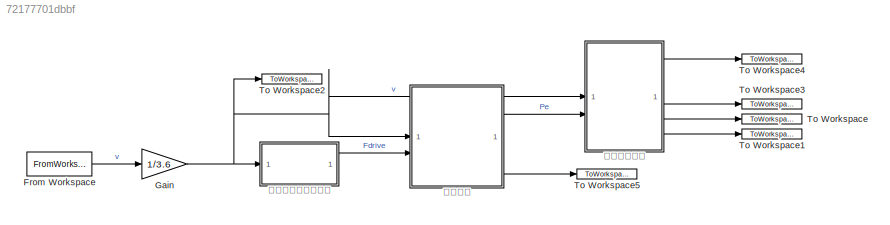
MODEL slx_72177701dbbf
KIND model
CONFIG AbsTol = auto
CONFIG EnableMultiTasking = off
CONFIG FixedStep = 0.01
CONFIG InitFcn = if type == 1\n    name = NEDC;\nelseif type == 2\n    name = CAFE;\nelseif type == 3\n    name = CNBUS;\nelseif type == 4\n    name = EUDC;\nelseif type == 5\n    name = FTP_75;\nelseif type == 6\n    name = HWFET;\nelseif type == 7\n    name = JC10;\nelseif type == 8\n    name = JC10_15;\nelseif type == 9\n    name = JC15;\nelseif type == 10\n    name = UDC;\nend\ntlen = size(name,1);\nif simtimeflag\n    simtime=tlen;...<+268ch>
CONFIG MaxStep = auto
CONFIG MinStep = auto
CONFIG RelTol = 1e-3
CONFIG SampleTimeConstraint = Unconstrained
CONFIG SolverName = FixedStepAuto
CONFIG StartTime = 0.0
CONFIG StopTime = simtime
BLOCK [FromWorkspace] From Workspace
  VariableName = name
BLOCK [Gain] Gain
  Gain = 1/3.6
BLOCK [ToWorkspace] To Workspace
  FixptAsFi = on
  MaxDataPoints = inf
  SampleTime = -1
  SaveFormat = Timeseries
  VariableName = xons
BLOCK [ToWorkspace] To Workspace1
  FixptAsFi = on
  MaxDataPoints = inf
  SampleTime = -1
  SaveFormat = Timeseries
  VariableName = distance
BLOCK [ToWorkspace] To Workspace2
  FixptAsFi = on
  MaxDataPoints = inf
  SampleTime = -1
  SaveFormat = Timeseries
  VariableName = v
BLOCK [ToWorkspace] To Workspace3
  FixptAsFi = on
  MaxDataPoints = inf
  SampleTime = -1
  SaveFormat = Timeseries
  VariableName = SOC
BLOCK [ToWorkspace] To Workspace4
  FixptAsFi = on
  MaxDataPoints = inf
  SampleTime = -1
  SaveFormat = Timeseries
  VariableName = Pbat
BLOCK [ToWorkspace] To Workspace5
  FixptAsFi = on
  MaxDataPoints = inf
  SampleTime = -1
  SaveFormat = Timeseries
  VariableName = Torque
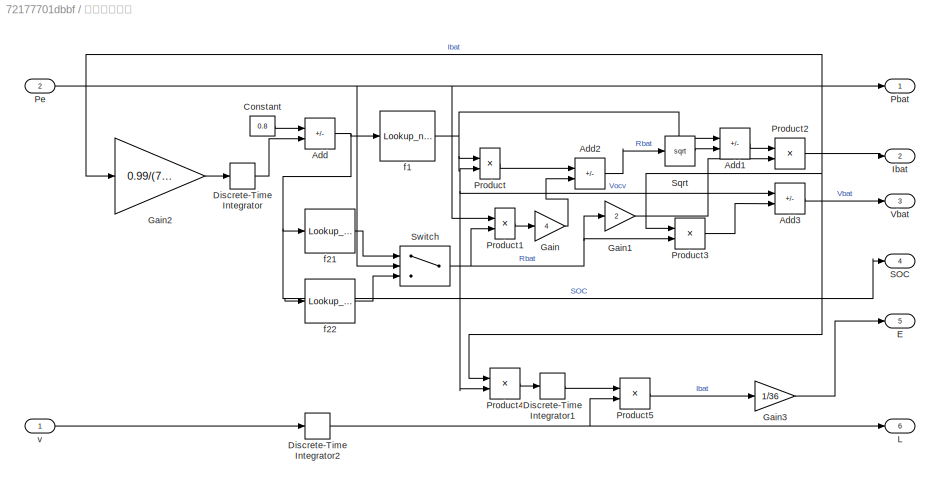
BLOCK [SubSystem] 动力电池模型
BLOCK [Sum] 动力电池模型/Add
  IconShape = rectangular
  Inputs = +-
BLOCK [Sum] 动力电池模型/Add1
  IconShape = rectangular
  Inputs = +-
BLOCK [Sum] 动力电池模型/Add2
  IconShape = rectangular
  Inputs = +-
BLOCK [Sum] 动力电池模型/Add3
  IconShape = rectangular
  Inputs = +-
BLOCK [Constant] 动力电池模型/Constant
  Value = 0.8
BLOCK [DiscreteIntegrator] 动力电池模型/Discrete-Time Integrator
  ICPrevOutput = DiscIntNeverNeededParam
  ICPrevScaledInput = DiscIntNeverNeededParam
  InitialConditionSetting = Auto
  SampleTime = -1
BLOCK [DiscreteIntegrator] 动力电池模型/Discrete-Time Integrator1
  ICPrevOutput = DiscIntNeverNeededParam
  ICPrevScaledInput = DiscIntNeverNeededParam
  InitialConditionSetting = Auto
  SampleTime = -1
BLOCK [DiscreteIntegrator] 动力电池模型/Discrete-Time Integrator2
  ICPrevOutput = DiscIntNeverNeededParam
  ICPrevScaledInput = DiscIntNeverNeededParam
  InitialConditionSetting = Auto
  SampleTime = -1
BLOCK [Outport] 动力电池模型/E
  Port = 5
BLOCK [Gain] 动力电池模型/Gain
  Gain = 4
BLOCK [Gain] 动力电池模型/Gain1
  Gain = 2
BLOCK [Gain] 动力电池模型/Gain2
  Gain = 0.99/(74*3600)
BLOCK [Gain] 动力电池模型/Gain3
  Gain = 1/36
BLOCK [Outport] 动力电池模型/Ibat
  Port = 2
BLOCK [Outport] 动力电池模型/L
  Port = 6
BLOCK [Outport] 动力电池模型/Pbat
BLOCK [Inport] 动力电池模型/Pe
  Port = 2
BLOCK [Product] 动力电池模型/Product
BLOCK [Product] 动力电池模型/Product1
BLOCK [Product] 动力电池模型/Product2
  Inputs = */
BLOCK [Product] 动力电池模型/Product3
BLOCK [Product] 动力电池模型/Product4
BLOCK [Product] 动力电池模型/Product5
  Inputs = */
BLOCK [Outport] 动力电池模型/SOC
  Port = 4
BLOCK [Sqrt] 动力电池模型/Sqrt
BLOCK [Switch] 动力电池模型/Switch
  InputSameDT = off
  SaturateOnIntegerOverflow = off
BLOCK [Outport] 动力电池模型/Vbat
  Port = 3
BLOCK [Lookup_n-D] 动力电池模型/f1
  BreakpointsForDimension1 = Vocv_cha_SOC(:,1)
  InputPortMap = u0
  InternalRulePriority = Speed
  NumberOfTableDimensions = 1
  RndMeth = Simplest
  Table = Vocv_cha_SOC(:,2)
BLOCK [Lookup_n-D] 动力电池模型/f21
  BreakpointsForDimension1 = R_dch_SOC(:,1)
  InputPortMap = u0
  InternalRulePriority = Speed
  NumberOfTableDimensions = 1
  RndMeth = Simplest
  Table = R_dch_SOC(:,2)
BLOCK [Lookup_n-D] 动力电池模型/f22
  BreakpointsForDimension1 = R_cha_SOC(:,1)
  InputPortMap = u0
  InternalRulePriority = Speed
  NumberOfTableDimensions = 1
  RndMeth = Simplest
  Table = R_cha_SOC(:,2)
BLOCK [Inport] 动力电池模型/v
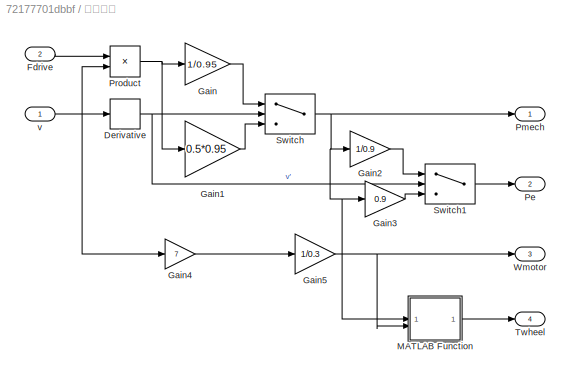
BLOCK [SubSystem] 电机模型
BLOCK [Derivative] 电机模型/Derivative
BLOCK [Inport] 电机模型/Fdrive
  Port = 2
BLOCK [Gain] 电机模型/Gain
  Gain = 1/0.95
BLOCK [Gain] 电机模型/Gain1
  Gain = 0.5*0.95
BLOCK [Gain] 电机模型/Gain2
  Gain = 1/0.9
BLOCK [Gain] 电机模型/Gain3
  Gain = 0.9
BLOCK [Gain] 电机模型/Gain4
  Gain = 7
BLOCK [Gain] 电机模型/Gain5
  Gain = 1/0.3
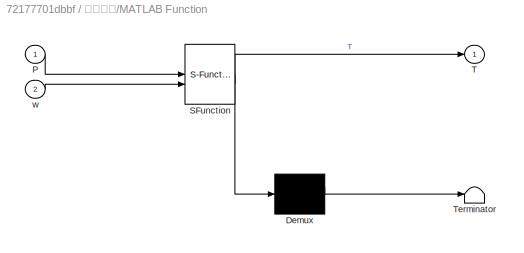
BLOCK [SubSystem] 电机模型/MATLAB Function
  ErrorFcn = Stateflow.Translate.translate
  PermitHierarchicalResolution = ExplicitOnly
  SFBlockType = MATLAB Function
  TreatAsAtomicUnit = on
BLOCK [Demux] 电机模型/MATLAB Function/ Demux 
  Outputs = 1
BLOCK [S-Function] 电机模型/MATLAB Function/ SFunction 
  EnableBusSupport = on
  FunctionName = sf_sfun
  PortCounts = [2 2]
  SFcnIsStateOwnerBlock = off
  SFunctionDeploymentMode = off
  Tag = Stateflow S-Function 2
BLOCK [Terminator] 电机模型/MATLAB Function/ Terminator 
BLOCK [Inport] 电机模型/MATLAB Function/P
BLOCK [Outport] 电机模型/MATLAB Function/T
BLOCK [Inport] 电机模型/MATLAB Function/w
  Port = 2
BLOCK [Outport] 电机模型/Pe
  Port = 2
BLOCK [Outport] 电机模型/Pmech
BLOCK [Product] 电机模型/Product
BLOCK [Switch] 电机模型/Switch
  InputSameDT = off
  SaturateOnIntegerOverflow = off
BLOCK [Switch] 电机模型/Switch1
  InputSameDT = off
  SaturateOnIntegerOverflow = off
BLOCK [Outport] 电机模型/Twheel
  Port = 4
BLOCK [Outport] 电机模型/Wmotor
  Port = 3
BLOCK [Inport] 电机模型/v
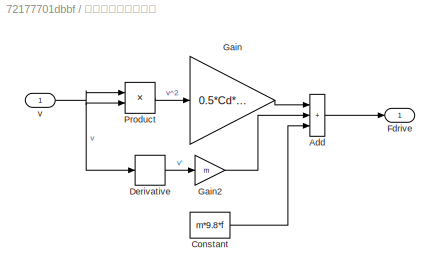
BLOCK [SubSystem] 车辆纵向动力学模型
BLOCK [Sum] 车辆纵向动力学模型/Add
  IconShape = rectangular
  Inputs = +++
BLOCK [Constant] 车辆纵向动力学模型/Constant
  Value = m*9.8*f
BLOCK [Derivative] 车辆纵向动力学模型/Derivative
BLOCK [Outport] 车辆纵向动力学模型/Fdrive
BLOCK [Gain] 车辆纵向动力学模型/Gain
  Gain = 0.5*Cd*A*1.29
BLOCK [Gain] 车辆纵向动力学模型/Gain2
  Gain = m
BLOCK [Product] 车辆纵向动力学模型/Product
BLOCK [Inport] 车辆纵向动力学模型/v
LINE From Workspace:1 -> Gain:1
NET Gain:1 -> To Workspace2:1, 动力电池模型:1, 电机模型:1, 车辆纵向动力学模型:1
LINE 动力电池模型/Add1:1 -> 动力电池模型/Product2:1
LINE 动力电池模型/Add2:1 -> 动力电池模型/Sqrt:1
LINE 动力电池模型/Add3:1 -> 动力电池模型/Vbat:1
NET 动力电池模型/Add:1 -> 动力电池模型/SOC:1, 动力电池模型/f1:1, 动力电池模型/f21:1, 动力电池模型/f22:1
LINE 动力电池模型/Constant:1 -> 动力电池模型/Add:1
LINE 动力电池模型/Discrete-Time Integrator1:1 -> 动力电池模型/Product5:1
NET 动力电池模型/Discrete-Time Integrator2:1 -> 动力电池模型/L:1, 动力电池模型/Product5:2
LINE 动力电池模型/Discrete-Time Integrator:1 -> 动力电池模型/Add:2
LINE 动力电池模型/Gain1:1 -> 动力电池模型/Product2:2
LINE 动力电池模型/Gain2:1 -> 动力电池模型/Discrete-Time Integrator:1
LINE 动力电池模型/Gain3:1 -> 动力电池模型/E:1
LINE 动力电池模型/Gain:1 -> 动力电池模型/Add2:2
NET 动力电池模型/Pe:1 -> 动力电池模型/Pbat:1, 动力电池模型/Product1:1, 动力电池模型/Switch:2
LINE 动力电池模型/Product1:1 -> 动力电池模型/Gain:1
NET 动力电池模型/Product2:1 -> 动力电池模型/Gain2:1, 动力电池模型/Ibat:1, 动力电池模型/Product3:1, 动力电池模型/Product4:1
LINE 动力电池模型/Product3:1 -> 动力电池模型/Add3:2
LINE 动力电池模型/Product4:1 -> 动力电池模型/Discrete-Time Integrator1:1
LINE 动力电池模型/Product5:1 -> 动力电池模型/Gain3:1
LINE 动力电池模型/Product:1 -> 动力电池模型/Add2:1
LINE 动力电池模型/Sqrt:1 -> 动力电池模型/Add1:2
NET 动力电池模型/Switch:1 -> 动力电池模型/Gain1:1, 动力电池模型/Product1:2, 动力电池模型/Product3:2
NET 动力电池模型/f1:1 -> 动力电池模型/Add1:1, 动力电池模型/Add3:1, 动力电池模型/Product4:2, 动力电池模型/Product:1, 动力电池模型/Product:2
LINE 动力电池模型/f21:1 -> 动力电池模型/Switch:1
LINE 动力电池模型/f22:1 -> 动力电池模型/Switch:3
LINE 动力电池模型/v:1 -> 动力电池模型/Discrete-Time Integrator2:1
LINE 动力电池模型:1 -> To Workspace4:1
LINE 动力电池模型:4 -> To Workspace3:1
LINE 动力电池模型:5 -> To Workspace:1
LINE 动力电池模型:6 -> To Workspace1:1
NET 电机模型/Derivative:1 -> 电机模型/Switch1:2, 电机模型/Switch:2
LINE 电机模型/Fdrive:1 -> 电机模型/Product:1
LINE 电机模型/Gain1:1 -> 电机模型/Switch:3
LINE 电机模型/Gain2:1 -> 电机模型/Switch1:1
LINE 电机模型/Gain3:1 -> 电机模型/Switch1:3
LINE 电机模型/Gain4:1 -> 电机模型/Gain5:1
NET 电机模型/Gain5:1 -> 电机模型/MATLAB Function:2, 电机模型/Wmotor:1
LINE 电机模型/Gain:1 -> 电机模型/Switch:1
LINE 电机模型/MATLAB Function:1 -> 电机模型/Twheel:1
NET 电机模型/Product:1 -> 电机模型/Gain1:1, 电机模型/Gain:1
LINE 电机模型/Switch1:1 -> 电机模型/Pe:1
NET 电机模型/Switch:1 -> 电机模型/Gain2:1, 电机模型/Gain3:1, 电机模型/MATLAB Function:1, 电机模型/Pmech:1
NET 电机模型/v:1 -> 电机模型/Derivative:1, 电机模型/Gain4:1, 电机模型/Product:2
LINE 电机模型:2 -> 动力电池模型:2
LINE 电机模型:4 -> To Workspace5:1
LINE 车辆纵向动力学模型/Add:1 -> 车辆纵向动力学模型/Fdrive:1
LINE 车辆纵向动力学模型/Constant:1 -> 车辆纵向动力学模型/Add:3
LINE 车辆纵向动力学模型/Derivative:1 -> 车辆纵向动力学模型/Gain2:1
LINE 车辆纵向动力学模型/Gain2:1 -> 车辆纵向动力学模型/Add:2
LINE 车辆纵向动力学模型/Gain:1 -> 车辆纵向动力学模型/Add:1
LINE 车辆纵向动力学模型/Product:1 -> 车辆纵向动力学模型/Gain:1
NET 车辆纵向动力学模型/v:1 -> 车辆纵向动力学模型/Derivative:1, 车辆纵向动力学模型/Product:1, 车辆纵向动力学模型/Product:2
LINE 车辆纵向动力学模型:1 -> 电机模型:2
note: NET lines group one-source signal fan-out (src -> all destinations, sorted); 1:1 wires keep LINE
CHART 电机模型/MATLAB Function states=1 transitions=1
  STATE_LABEL 'eML_blk_kernel()'
  STATE_LABEL 'SCRIPT:\nfunction T = fcn(P,w)\nif w\n    T = P/w;\nelse\n    T=0;\nend\n\n'
CHART  states=0 transitions=0
